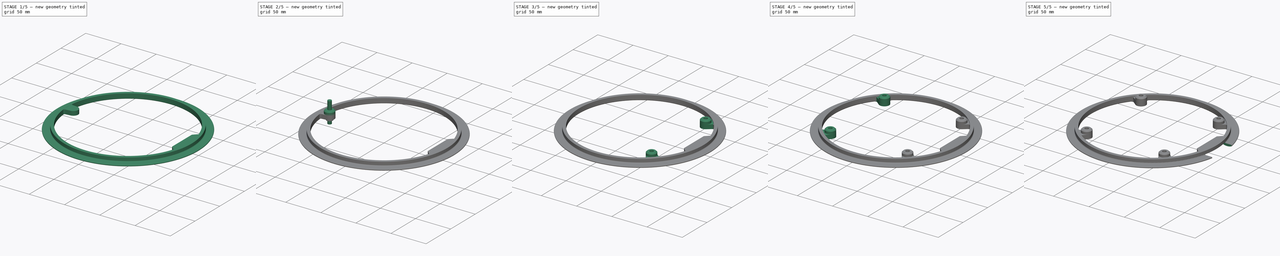
[diagram: build sequence overview — one tinted view per stage of 5, left to right]
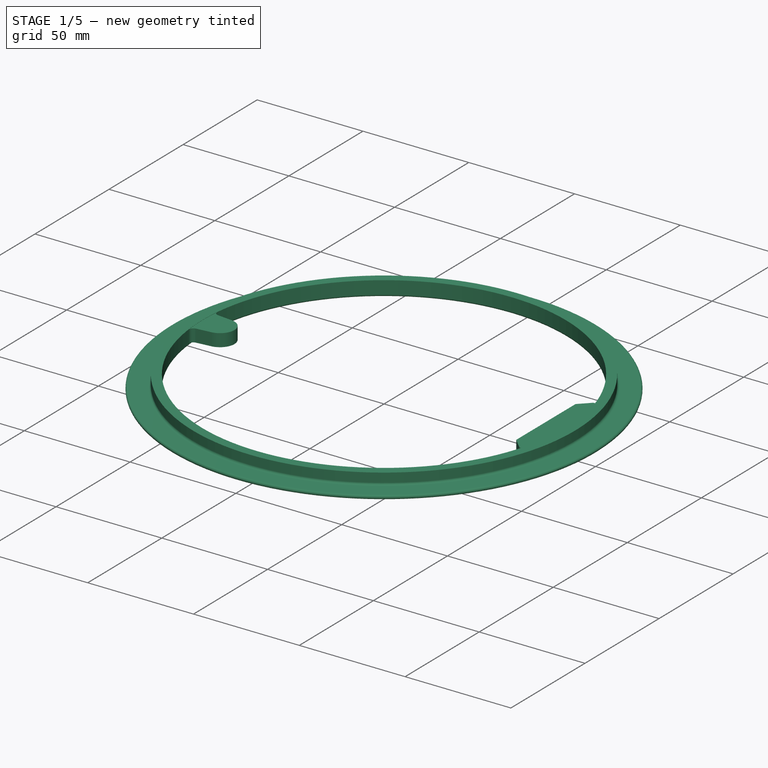
[diagram: stage 1 of 5 — iso view after this stage's code; geometry added in this stage tinted green]
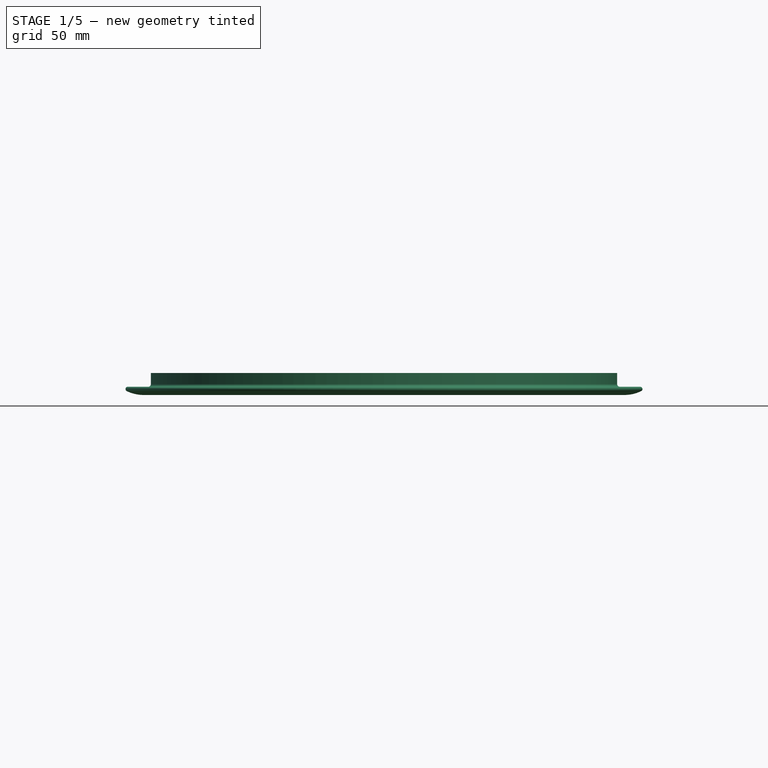
[diagram: stage 1 of 5 — front view after this stage's code; geometry added in this stage tinted green]
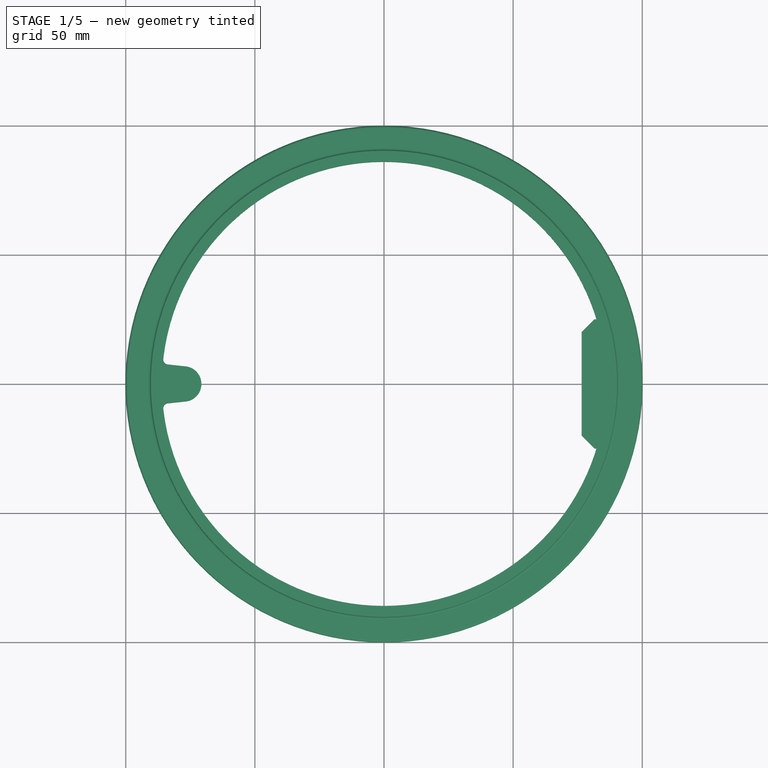
[diagram: stage 1 of 5 — top view after this stage's code; geometry added in this stage tinted green]
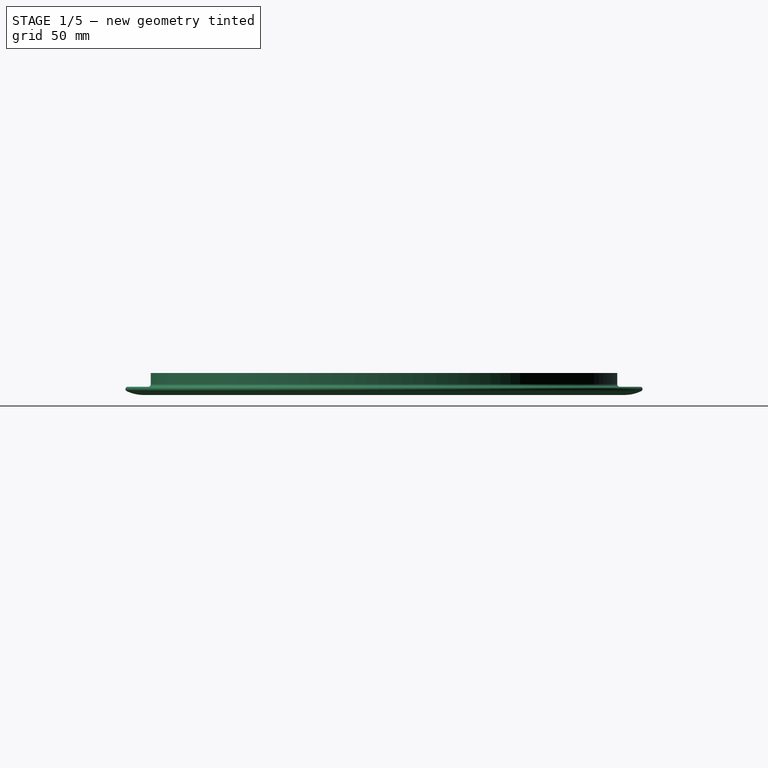
[diagram: stage 1 of 5 — right view after this stage's code; geometry added in this stage tinted green]
FCSTD DOCUMENT  (FreeCAD 0.17R13472 (Git))
Label: 20180330_kettenschutz
License: All rights reserved
LicenseURL: http://en.wikipedia.org/wiki/All_rights_reserved
objects: Part::Cut×6, Part::Fuse×5, Part::Cylinder×3, Sketcher::SketchObject×2, Part::Chamfer×2, Part::Box×2, PartDesign::Body×2, PartDesign::Revolution×1, PartDesign::Plane×1, PartDesign::Pad×1, App::Part×1, Part::MultiFuse×1
note: 28 computed .brp shape members not serialized (recipe doc carries the construction recipe); baked Part::Feature solids carry a one-line shape summary decoded from their .brp

FEATURE [Sketcher::SketchObject] Sketch
  MapMode = 5
  Placement = pos=(0,0,0) rot=(0.57735,0.57735,0.57735;2.0944rad)
  Support = -> [YZ_Plane001]
  sketch-geometry (10):
    g0: ArcOfCircle CenterX=93.0789 CenterY=15 CenterZ=0 NormalX=0 NormalY=0 NormalZ=1 AngleXU=0 Radius=15 StartAngle=4.26323 EndAngle=5.16154
    g1: ArcOfCircle CenterX=87 CenterY=2.38859 CenterZ=0 NormalX=0 NormalY=0 NormalZ=1 AngleXU=0 Radius=1 StartAngle=3.14159 EndAngle=4.26323
    g2: ArcOfCircle CenterX=99.2008 CenterY=2.29922 CenterZ=0 NormalX=0 NormalY=0 NormalZ=1 AngleXU=0 Radius=0.900783 StartAngle=5.16154 EndAngle=7.85398
    g3: ArcOfCircle CenterX=91.3 CenterY=4.2 CenterZ=0 NormalX=0 NormalY=0 NormalZ=1 AngleXU=0 Radius=1 StartAngle=3.14159 EndAngle=4.71239
    g4: LineSegment StartX=91.3 StartY=3.2 StartZ=0 EndX=99.2008 EndY=3.2 EndZ=0
    g5: LineSegment StartX=86 StartY=2.38859 StartZ=0 EndX=86 EndY=8.5 EndZ=0
    g6: LineSegment StartX=86 StartY=8.5 StartZ=0 EndX=90.3 EndY=8.5 EndZ=0
    g7: LineSegment StartX=90.3 StartY=8.5 StartZ=0 EndX=90.3 EndY=4.2 EndZ=0
    g8: LineSegment [constr] StartX=98.3 StartY=2.29922 StartZ=0 EndX=98.3 EndY=0 EndZ=0
    g9: LineSegment [constr] StartX=86.5658 StartY=1.48778 StartZ=0 EndX=99.5919 EndY=1.48778 EndZ=0
  constraints (34):
    c: Tangent(g-1,g0)
    c: Coincident(g1,g0)
    c: Tangent(g1,g0)
    c: Coincident(g2,g0)
    c: Tangent(g2,g0)
    c: Coincident(g4,g2)
    c: Tangent(g4,g2)
    c: Tangent(g4,g3)
    c: Horizontal(g4)
    c: Coincident(g5,g1)
    c: Coincident(g6,g5)
    c: Horizontal(g6)
    c: Coincident(g7,g6)
    c: Coincident(g7,g3)
    c: Vertical(g7)
    c: Tangent(g3,g7)
    c: DistanceY(g-1,g2) = 3.2
    c: DistanceX(g6,g6) = 4.3
    c: PointOnObject(g8,g-1)
    c: Vertical(g8)
    c: DistanceX(g5,g8) = 12.3
    c: DistanceY(g-1,g5) = 8.5
    c: Radius(g3) = 1
    c: PointOnObject(g8,g2)
    c: Tangent(g8,g2)
    c: Vertical(g5)
    c: Coincident(g9,g0)
    c: Coincident(g9,g0)
    c: Horizontal(g9)
    c: DistanceY(g0) = 15
    c: Coincident(g3,g4)
    c: Equal(g1,g3)
    c: DistanceX(g-1,g5) = 86
    c: Tangent(g5,g1)
FEATURE [PartDesign::Revolution] Revolution
  Angle = 360
  Axis = (0,0,1)
  Base = (0,0,0)
  Placement = pos=(0,0,0) rot=(0.57735,0.57735,0.57735;2.0944rad)
  Profile = -> Sketch
  ReferenceAxis = -> Sketch [V_Axis]
  Reversed = true
FEATURE [Part::Box] Box  label="Cube"
  AttacherType = Attacher::AttachEngine3D
  Height = 4.5
  Length = 10
  Placement = pos=(76.5,-25,4) rot=(0,0,1;0rad)
  Width = 50
FEATURE [PartDesign::Body] RevolutionBody
  Group = -> [Sketch,Revolution]
  Origin = -> Origin001
  Tip = -> Revolution
FEATURE [PartDesign::Plane] DatumPlane
  AttachmentOffset = pos=(0,0,2.4) rot=(0,0,1;0rad)
  MapMode = 5
  Placement = pos=(0,0,2.4) rot=(0,0,1;0rad)
  Support = -> [XY_Plane002]
FEATURE [Sketcher::SketchObject] Sketch001
  MapMode = 5
  Placement = pos=(0,0,2.4) rot=(0,0,1;0rad)
  Support = -> [DatumPlane]
  sketch-geometry (7):
    g0: Circle [constr] CenterX=0 CenterY=0 CenterZ=0 NormalX=0 NormalY=0 NormalZ=1 AngleXU=0 Radius=86
    g1: ArcOfCircle CenterX=-77.5 CenterY=0 CenterZ=0 NormalX=0 NormalY=0 NormalZ=1 AngleXU=0 Radius=6.8 StartAngle=4.81904 EndAngle=7.74733
    g2: ArcOfCircle CenterX=-83.4624 CenterY=9.48863 CenterZ=0 NormalX=0 NormalY=0 NormalZ=1 AngleXU=0 Radius=2 StartAngle=3.02839 EndAngle=4.60573
    g3: ArcOfCircle CenterX=-83.4624 CenterY=-9.48863 CenterZ=0 NormalX=0 NormalY=0 NormalZ=1 AngleXU=0 Radius=2 StartAngle=1.67746 EndAngle=3.25479
    g4: LineSegment StartX=-83.6753 StartY=7.5 StartZ=0 EndX=-76.7761 EndY=6.76136 EndZ=0
    g5: LineSegment StartX=-76.7761 StartY=-6.76136 StartZ=0 EndX=-83.6753 EndY=-7.5 EndZ=0
    g6: ArcOfCircle CenterX=0 CenterY=0 CenterZ=0 NormalX=0 NormalY=0 NormalZ=1 AngleXU=0 Radius=86 StartAngle=3.02839 EndAngle=3.25479
  constraints (21):
    c: Coincident(g0,g-1)
    c: Radius(g0) = 86
    c: PointOnObject(g1,g-1)
    c: Symmetric(g1,g1,g-1)
    c: Symmetric(g2,g3,g-1)
    c: Tangent(g2,g0) = -1.5708
    c: Tangent(g3,g0) = -1.5708
    c: Coincident(g4,g1)
    c: Coincident(g5,g1)
    c: Coincident(g5,g3)
    c: Radius(g1) = 6.8
    c: Radius(g2) = 2
    c: Coincident(g2,g4)
    c: Tangent(g2,g4)
    c: Tangent(g3,g5)
    c: DistanceX(g1) = -77.5
    c: Tangent(g4,g1)
    c: DistanceY(g3,g2) = 15
    c: Coincident(g2,g6)
    c: Coincident(g6,g3)
    c: Coincident(g6,g-1)
FEATURE [PartDesign::Pad] Pad
  Length = 6
  Length2 = 100
  Placement = pos=(0,0,2.4) rot=(0,0,1;0rad)
  Profile = -> Sketch001
  Type = 0
FEATURE [App::Part] Part
  Group = -> [RevolutionBody,PadBody]
  License = CC BY 3.0
  LicenseURL = http://creativecommons.org/licenses/by/3.0/
  Origin = -> Origin
FEATURE [Part::Chamfer] Chamfer001
  Base = -> Box
  Edges = 2 edges r=5: [Edge1,Edge3]
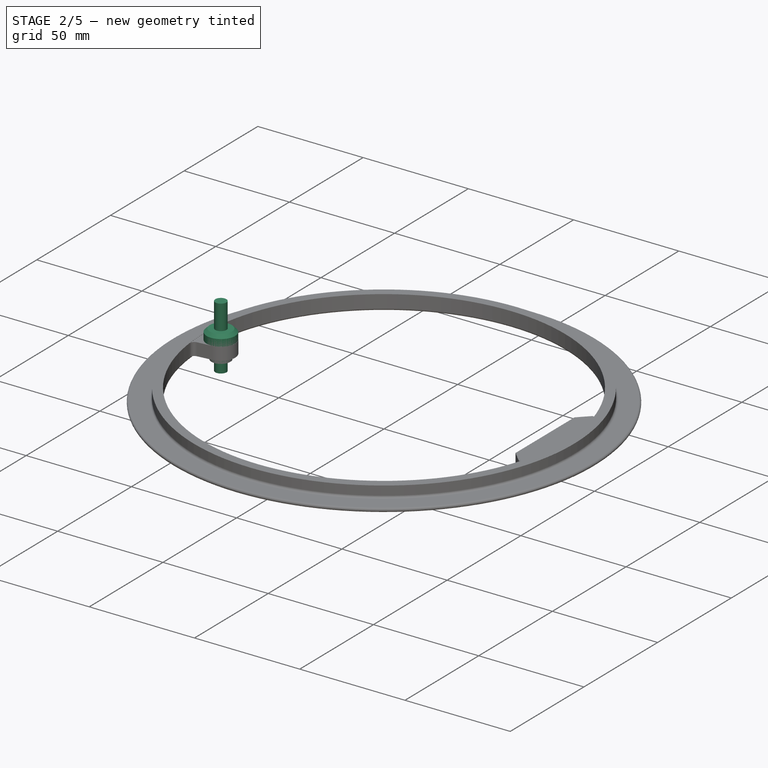
[diagram: stage 2 of 5 — iso view after this stage's code; geometry added in this stage tinted green]
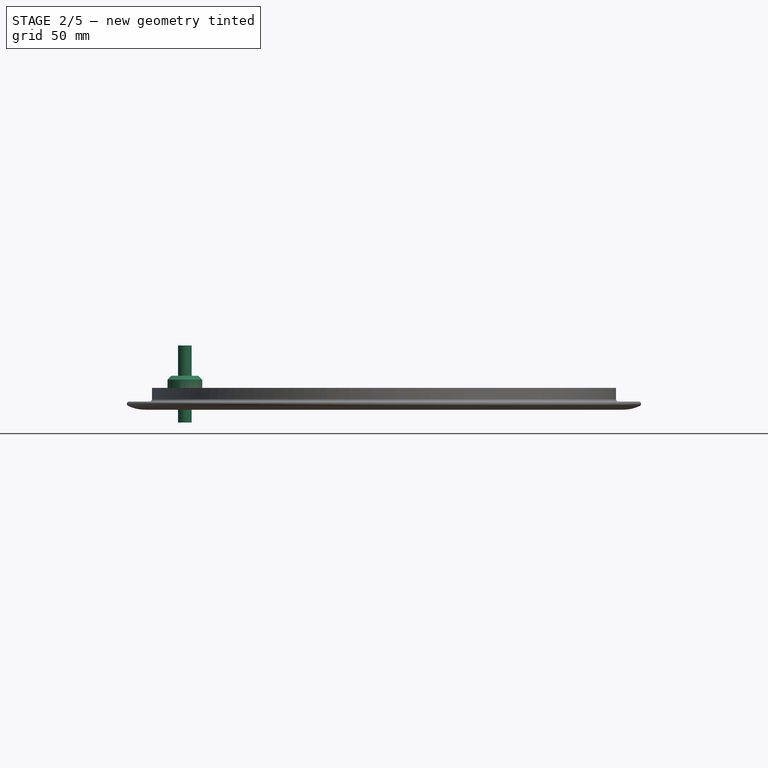
[diagram: stage 2 of 5 — front view after this stage's code; geometry added in this stage tinted green]
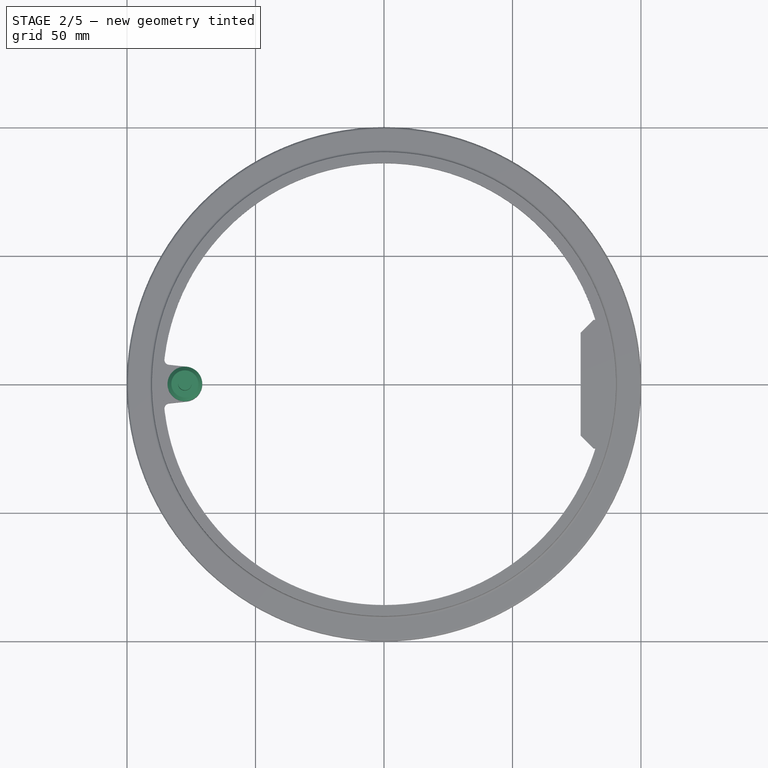
[diagram: stage 2 of 5 — top view after this stage's code; geometry added in this stage tinted green]
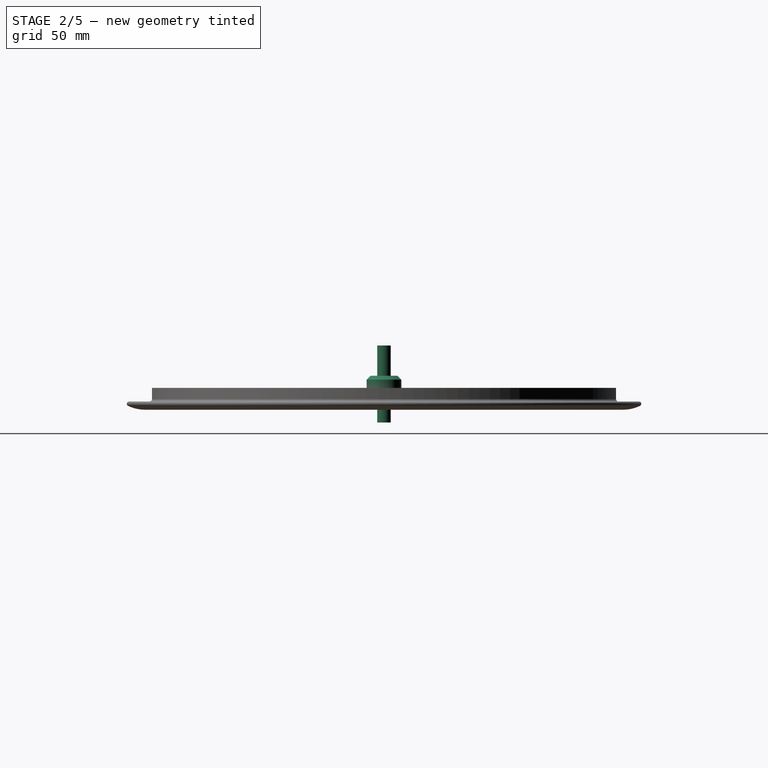
[diagram: stage 2 of 5 — right view after this stage's code; geometry added in this stage tinted green]
FEATURE [Part::Cylinder] Cylinder  label="Zylinder"
  Angle = 360
  AttacherType = Attacher::AttachEngine3D
  Height = 8.2
  Placement = pos=(-77.5,0,5) rot=(0,0,1;0rad)
  Radius = 6.75
FEATURE [Part::Chamfer] Chamfer
  Base = -> Cylinder
  Edges = 1 edges r=1.5: [Edge1]
FEATURE [Part::Cylinder] Cylinder001  label="Zylinder001"
  Angle = 360
  AttacherType = Attacher::AttachEngine3D
  Height = 30
  Placement = pos=(-77.5,0,-5) rot=(0,0,1;0rad)
  Radius = 2.65
FEATURE [Part::Cylinder] Cylinder002  label="Zylinder002"
  Angle = 360
  AttacherType = Attacher::AttachEngine3D
  Height = 6.5
  Placement = pos=(-77.5,0,0) rot=(0,0,1;0rad)
  Radius = 4.5
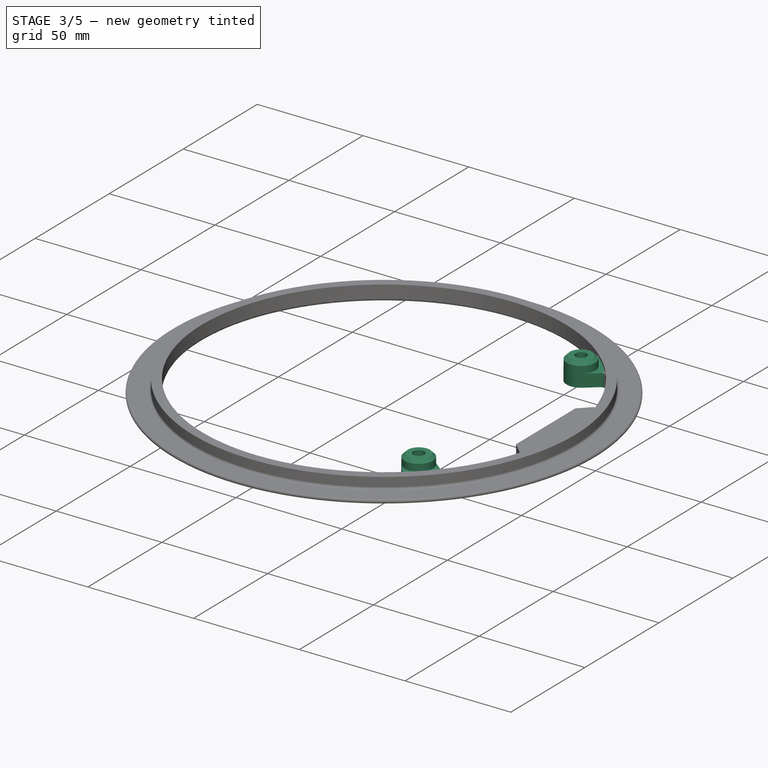
[diagram: stage 3 of 5 — iso view after this stage's code; geometry added in this stage tinted green]
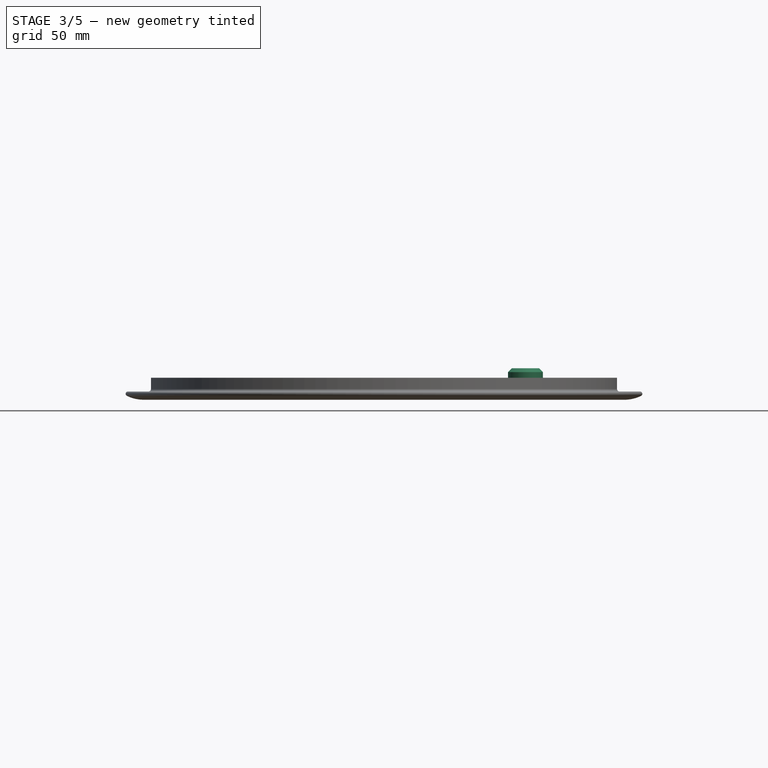
[diagram: stage 3 of 5 — front view after this stage's code; geometry added in this stage tinted green]
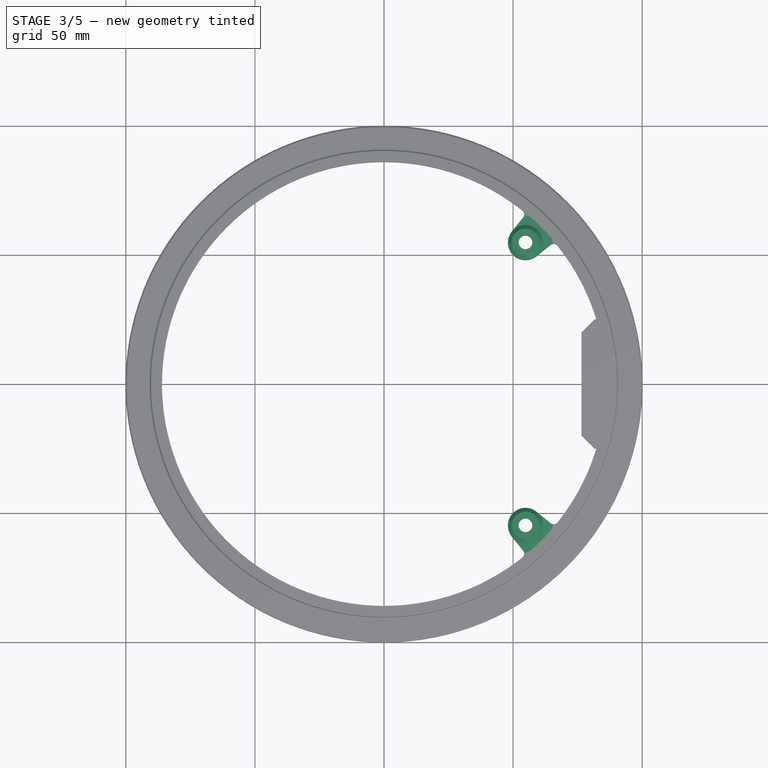
[diagram: stage 3 of 5 — top view after this stage's code; geometry added in this stage tinted green]
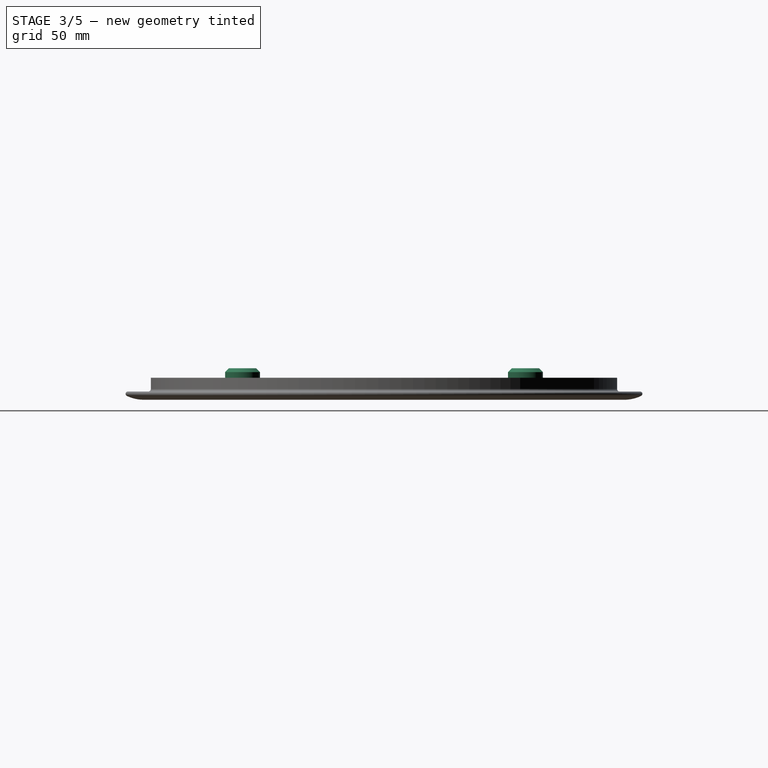
[diagram: stage 3 of 5 — right view after this stage's code; geometry added in this stage tinted green]
FEATURE [PartDesign::Body] PadBody
  Group = -> [DatumPlane,Sketch001,Pad]
  Origin = -> Origin002
  Tip = -> Pad
FEATURE [Part::Fuse] Fusion
  Base = -> PadBody
  Tool = -> Chamfer
FEATURE [Part::Cut] Cut
  Base = -> Fusion
  Placement = pos=(0,0,-1) rot=(0,0,1;0rad)
  Tool = -> Cylinder001
FEATURE [Part::Cut] Cut002  label="halter001"
  Base = -> Cut
  Placement = pos=(0,0,0) rot=(0,0,1;2.35619rad)
  Tool = -> Cylinder002
FEATURE [Part::Cut] Cut004  label="halter003"
  Base = -> Cut
  Placement = pos=(0,0,0) rot=(0,0,1;3.92699rad)
  Tool = -> Cylinder002
FEATURE [Part::Fuse] Fusion001
  Base = -> RevolutionBody
  Tool = -> Cut002
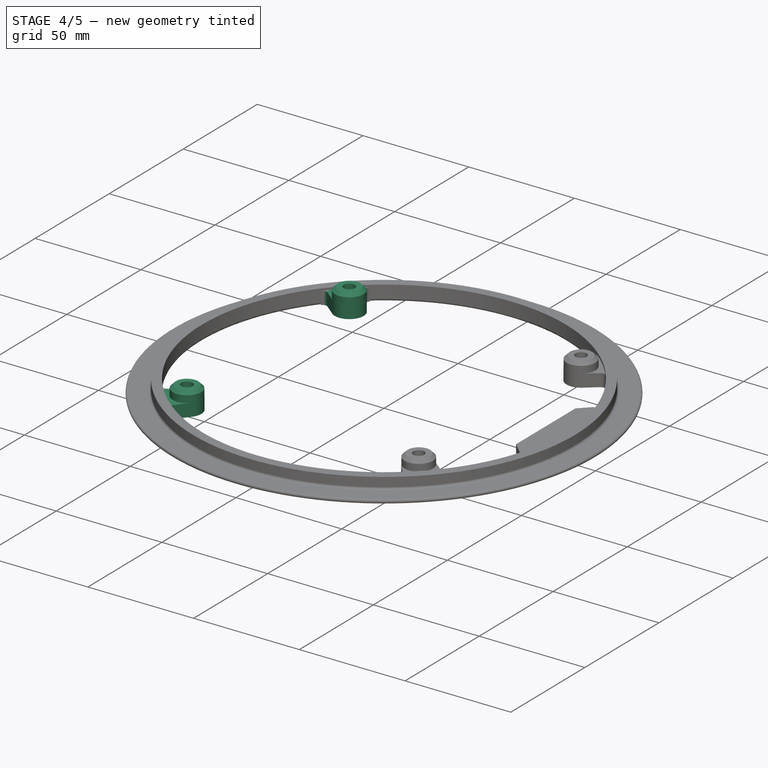
[diagram: stage 4 of 5 — iso view after this stage's code; geometry added in this stage tinted green]
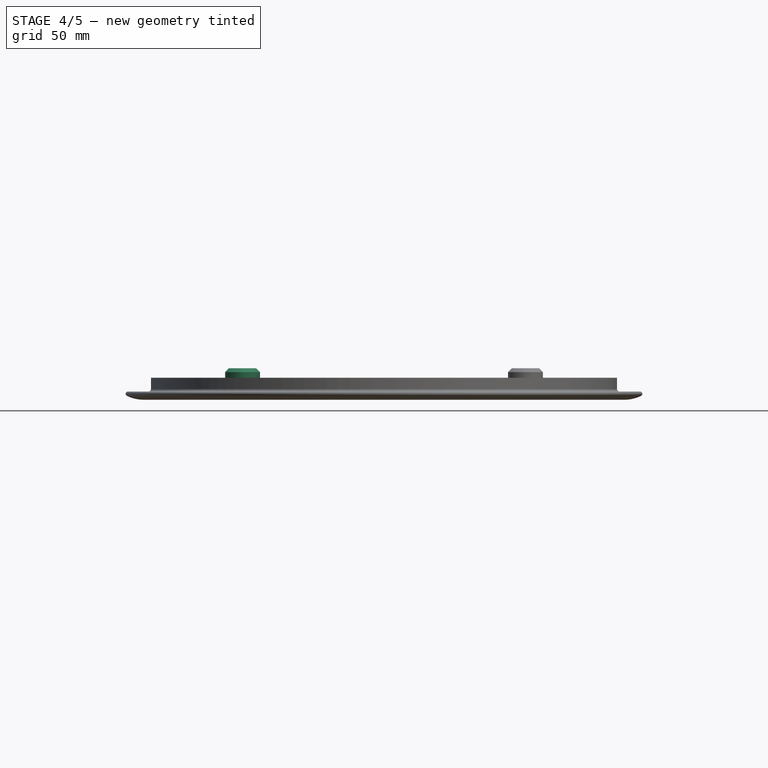
[diagram: stage 4 of 5 — front view after this stage's code; geometry added in this stage tinted green]
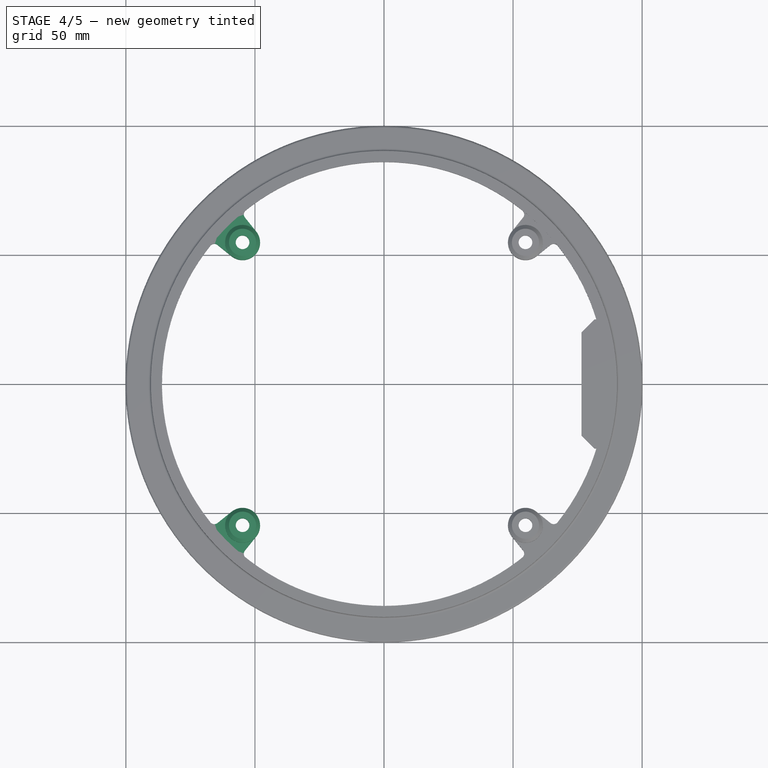
[diagram: stage 4 of 5 — top view after this stage's code; geometry added in this stage tinted green]
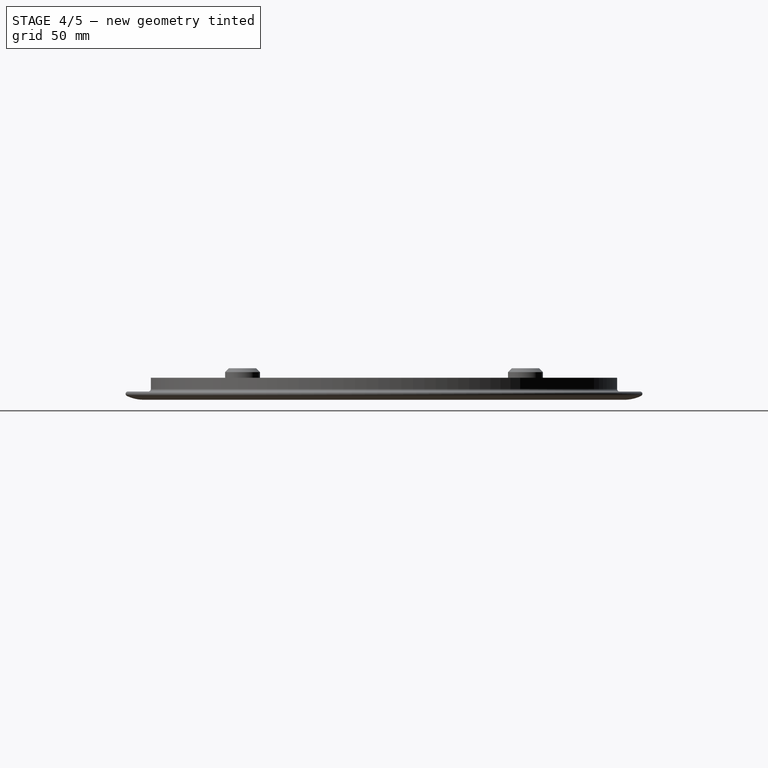
[diagram: stage 4 of 5 — right view after this stage's code; geometry added in this stage tinted green]
FEATURE [Part::Cut] Cut003  label="halter002"
  Base = -> Cut
  Placement = pos=(0,0,0) rot=(0,0,1;0.785398rad)
  Tool = -> Cylinder002
FEATURE [Part::Cut] Cut001  label="halter"
  Base = -> Cut
  Placement = pos=(0,0,0) rot=(0,0,-1;0.785398rad)
  Tool = -> Cylinder002
FEATURE [Part::Fuse] Fusion002
  Base = -> Cut003
  Tool = -> Cut001
FEATURE [Part::Fuse] Fusion003
  Base = -> Cut004
  Tool = -> Fusion001
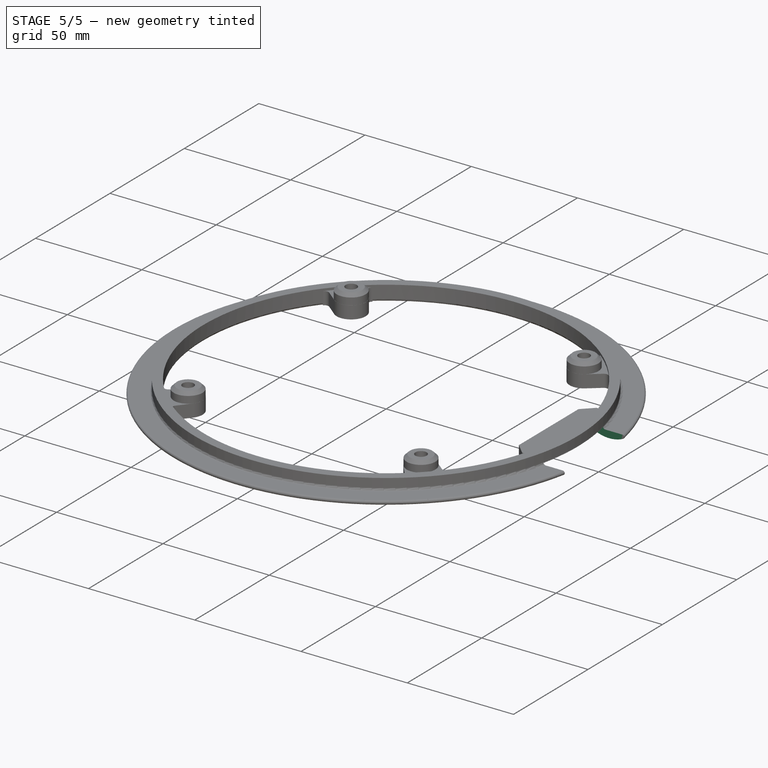
[diagram: stage 5 of 5 — iso view after this stage's code; geometry added in this stage tinted green]
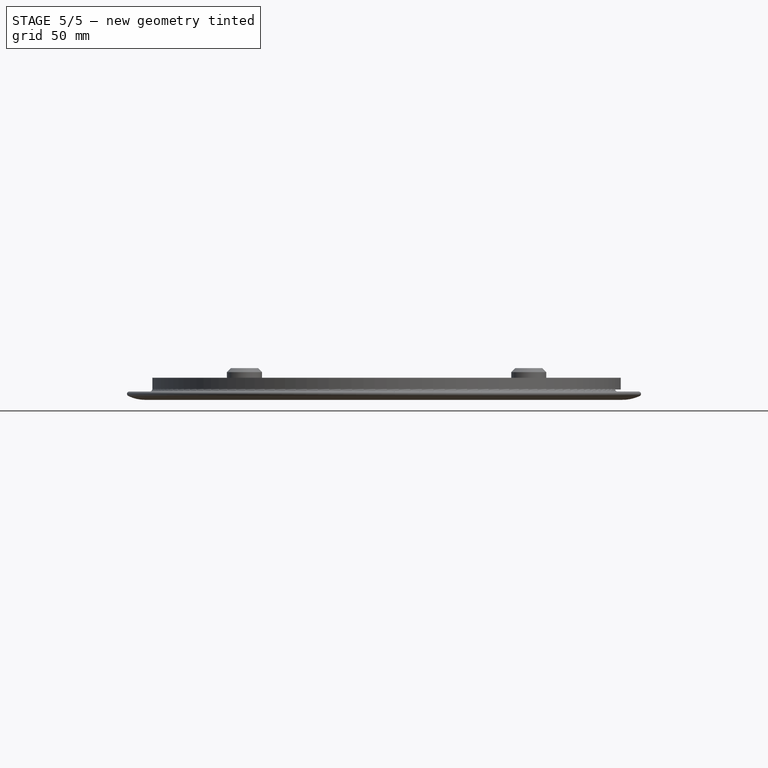
[diagram: stage 5 of 5 — front view after this stage's code; geometry added in this stage tinted green]
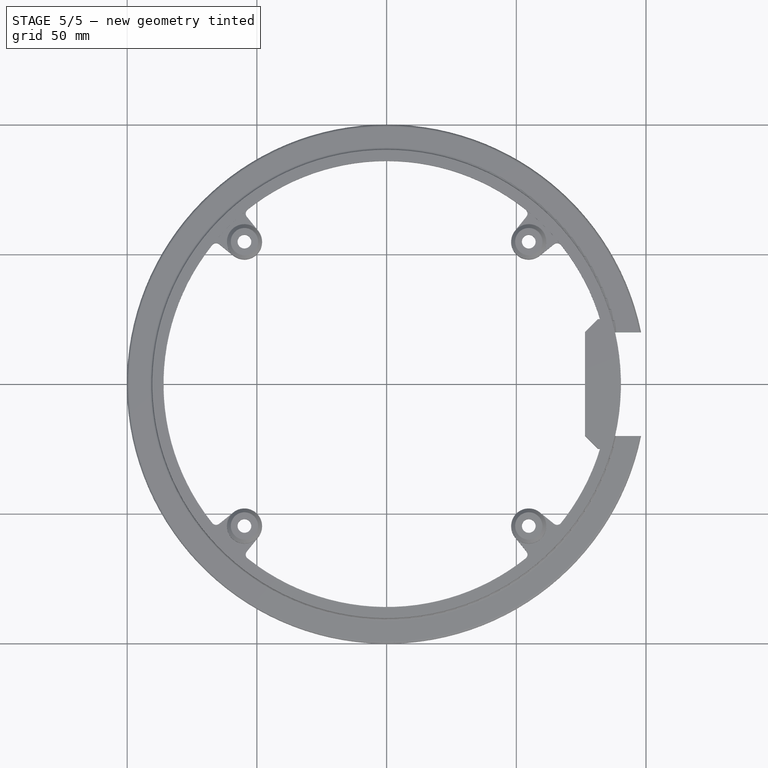
[diagram: stage 5 of 5 — top view after this stage's code; geometry added in this stage tinted green]
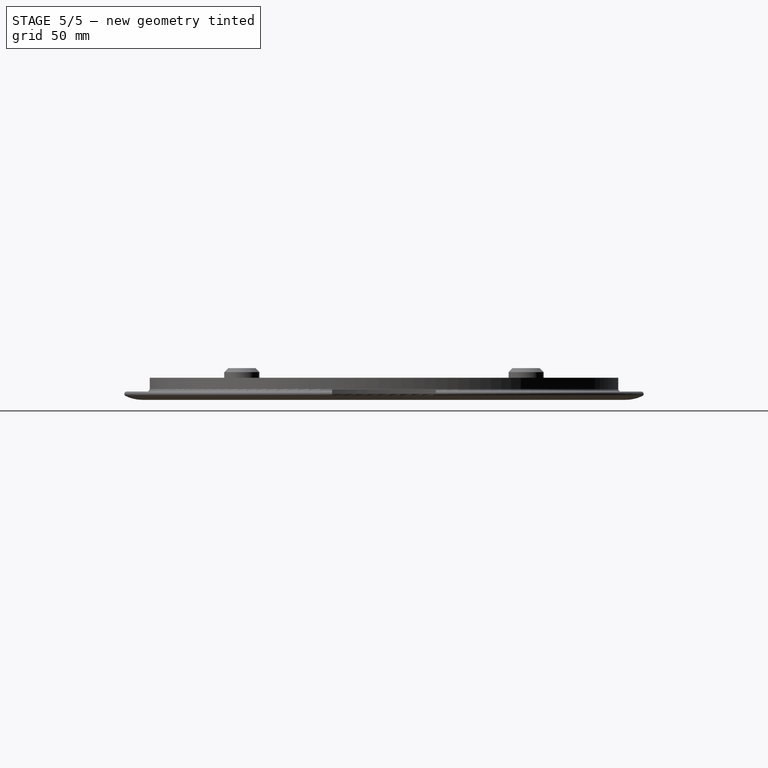
[diagram: stage 5 of 5 — right view after this stage's code; geometry added in this stage tinted green]
FEATURE [Part::Fuse] Fusion004
  Base = -> Fusion002
  Tool = -> Fusion003
FEATURE [Part::Box] Box001  label="Cube001"
  AttacherType = Attacher::AttachEngine3D
  Height = 4
  Length = 40
  Placement = pos=(70,-20,0) rot=(0,0,1;0rad)
  Width = 40
FEATURE [Part::MultiFuse] Fusion005
  Shapes = -> [Chamfer001,Fusion004]
FEATURE [Part::Cut] Cut005
  Base = -> Fusion005
  Tool = -> Box001
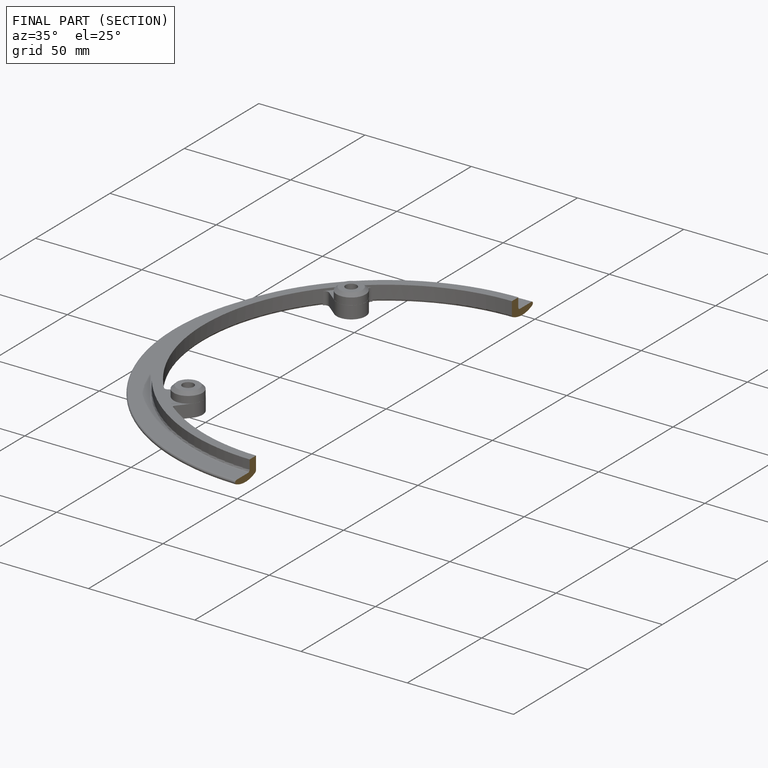
[diagram: finished part — half-section view (interior)]
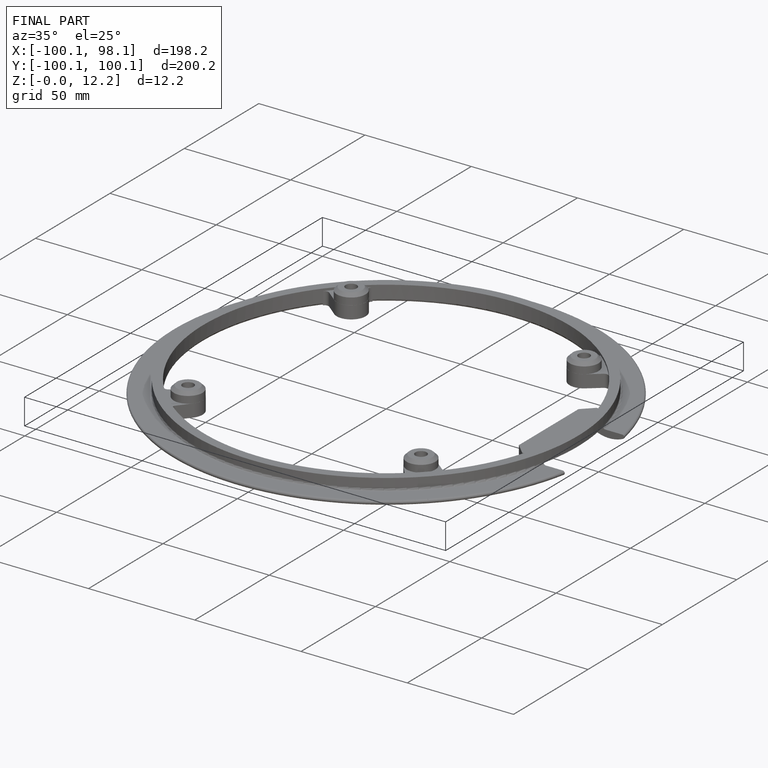
[diagram: finished part — iso view with bounding-box wireframe]
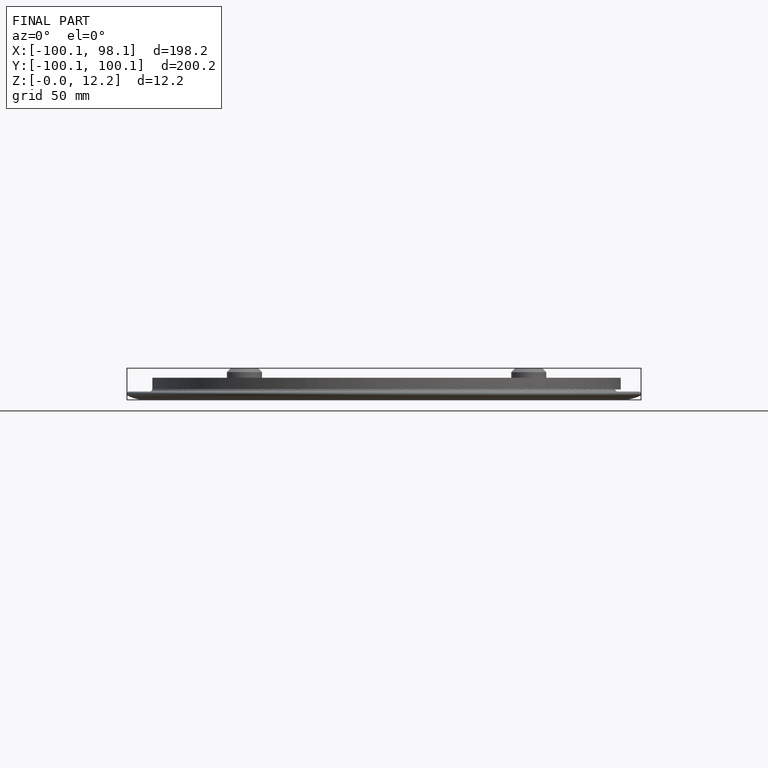
[diagram: finished part — front view with bounding-box wireframe]
